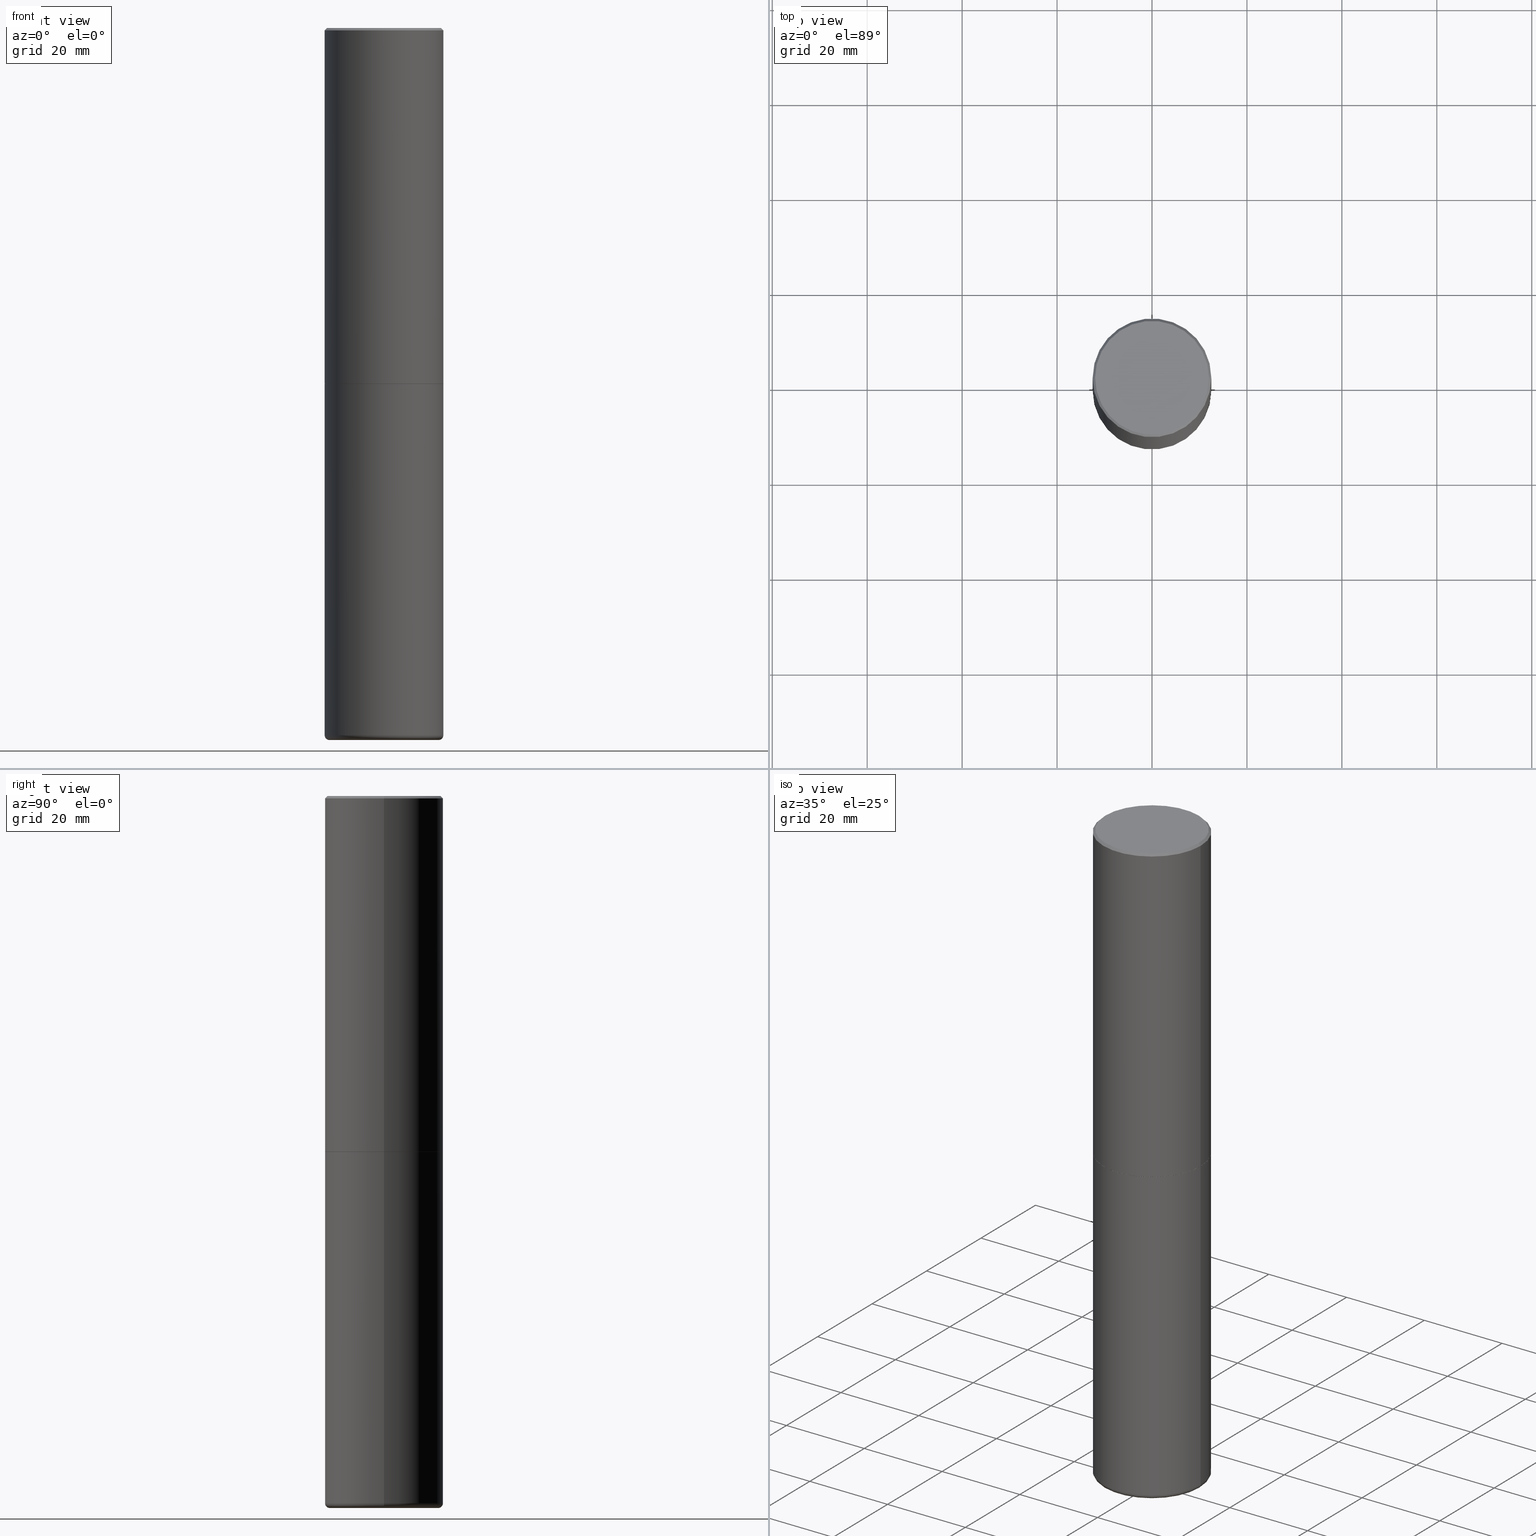
[diagram: canonical four-view strip — front | top / right | iso, engineering-drawing reading convention]
A machine part, canonical four-view strip (front | top / right | iso — engineering-drawing reading convention). The complete STEP part file that produces these views, byte-faithful:
ISO-10303-21;
HEADER;
FILE_DESCRIPTION (( 'STEP AP203' ),
    '1' );
FILE_NAME ('74575.STEP',
    '2024-03-06T15:31:44',
    ( '' ),
    ( '' ),
    'SwSTEP 2.0',
    'SolidWorks 2023',
    '' );
FILE_SCHEMA (( 'CONFIG_CONTROL_DESIGN' ));
ENDSEC;

DATA;
#1 = ORIENTED_EDGE ( 'NONE', *, *, #411, .F. ) ;
#2 = AXIS2_PLACEMENT_3D ( 'NONE', #138, #291, #237 ) ;
#3 = CARTESIAN_POINT ( 'NONE',  ( 7.220735744022852519E-29, -1.030929694920215502E-14, -2.952700000000000102 ) ) ;
#4 = EDGE_CURVE ( 'NONE', #44, #311, #40, .T. ) ;
#5 = AXIS2_PLACEMENT_3D ( 'NONE', #223, #346, #62 ) ;
#6 = EDGE_LOOP ( 'NONE', ( #80, #147, #334, #11 ) ) ;
#7 = PERSON_AND_ORGANIZATION ( #189, #377 ) ;
#8 = VERTEX_POINT ( 'NONE', #305 ) ;
#9 = CLOSED_SHELL ( 'NONE', ( #260, #340, #95, #109, #79, #98 ) ) ;
#10 = PERSON_AND_ORGANIZATION_ROLE ( 'classification_officer' ) ;
#11 = ORIENTED_EDGE ( 'NONE', *, *, #365, .F. ) ;
#12 = DIRECTION ( 'NONE',  ( -2.445468806185136597E-29, 3.491481338843145583E-15, 1.000000000000000000 ) ) ;
#13 = APPLICATION_CONTEXT ( 'configuration controlled 3d designs of mechanical parts and assemblies' ) ;
#14 = SECURITY_CLASSIFICATION ( '', '', #298 ) ;
#15 = PERSON_AND_ORGANIZATION ( #189, #377 ) ;
#16 = EDGE_LOOP ( 'NONE', ( #23, #196 ) ) ;
#17 = ORIENTED_EDGE ( 'NONE', *, *, #120, .T. ) ;
#18 = ADVANCED_FACE ( 'NONE', ( #19 ), #145, .T. ) ;
#19 = FACE_OUTER_BOUND ( 'NONE', #172, .T. ) ;
#20 = FACE_OUTER_BOUND ( 'NONE', #230, .T. ) ;
#21 = CIRCLE ( 'NONE', #410, 0.4921499999999999764 ) ;
#22 = LINE ( 'NONE', #90, #212 ) ;
#23 = ORIENTED_EDGE ( 'NONE', *, *, #113, .F. ) ;
#24 = LINE ( 'NONE', #148, #102 ) ;
#25 = EDGE_CURVE ( 'NONE', #152, #278, #414, .T. ) ;
#26 = FACE_OUTER_BOUND ( 'NONE', #6, .T. ) ;
#27 = EDGE_CURVE ( 'NONE', #8, #30, #231, .T. ) ;
#28 = VERTEX_POINT ( 'NONE', #198 ) ;
#29 = CARTESIAN_POINT ( 'NONE',  ( 4.488705641877112035E-29, -3.487222041955580978E-14, -5.905500000000000860 ) ) ;
#30 = VERTEX_POINT ( 'NONE', #108 ) ;
#31 = CARTESIAN_POINT ( 'NONE',  ( -0.4921500000000000874, -1.698444260774444222E-14, -5.866100000000000314 ) ) ;
#32 = DIRECTION ( 'NONE',  ( -2.445468806185136877E-29, 3.491481338843145188E-15, 1.000000000000000000 ) ) ;
#33 = APPLICATION_CONTEXT ( 'configuration controlled 3d designs of mechanical parts and assemblies' ) ;
#34 = DIRECTION ( 'NONE',  ( 1.000000000000000000, -6.982962677686265922E-15, 4.876176775795935793E-29 ) ) ;
#35 = ADVANCED_FACE ( 'NONE', ( #274 ), #362, .F. ) ;
#36 = LINE ( 'NONE', #282, #126 ) ;
#37 = ORIENTED_EDGE ( 'NONE', *, *, #181, .T. ) ;
#38 = CIRCLE ( 'NONE', #141, 0.4721500000000000696 ) ;
#39 = ORIENTED_EDGE ( 'NONE', *, *, #301, .T. ) ;
#40 = LINE ( 'NONE', #268, #156 ) ;
#41 = LOCAL_TIME ( 10, 31, 44.00000000000000000, #110 ) ;
#42 = PERSON_AND_ORGANIZATION_ROLE ( 'creator' ) ;
#43 = VERTEX_POINT ( 'NONE', #358 ) ;
#44 = VERTEX_POINT ( 'NONE', #371 ) ;
#45 = VECTOR ( 'NONE', #339, 39.37007874015748143 ) ;
#46 = DATE_TIME_ROLE ( 'creation_date' ) ;
#47 = TOROIDAL_SURFACE ( 'NONE', #372, 0.4527499999999999858, 0.03940000000000033753 ) ;
#48 = FACE_OUTER_BOUND ( 'NONE', #74, .T. ) ;
#49 = ORIENTED_EDGE ( 'NONE', *, *, #304, .F. ) ;
#50 = CC_DESIGN_PERSON_AND_ORGANIZATION_ASSIGNMENT ( #199, #168, ( #235 ) ) ;
#51 = EDGE_LOOP ( 'NONE', ( #353, #193, #356, #66 ) ) ;
#52 = DIRECTION ( 'NONE',  ( -1.000000000000000000, 6.982962677686265922E-15, -4.876176775795935793E-29 ) ) ;
#53 = AXIS2_PLACEMENT_3D ( 'NONE', #29, #412, #52 ) ;
#54 = FACE_OUTER_BOUND ( 'NONE', #16, .T. ) ;
#55 = CIRCLE ( 'NONE', #241, 0.03940000000000033753 ) ;
#56 = CC_DESIGN_APPROVAL ( #344, ( #235 ) ) ;
#57 = CARTESIAN_POINT ( 'NONE',  ( 1.444171603492632494E-28, -2.061894304653819828E-14, -5.905500000000000860 ) ) ;
#58 = LINE ( 'NONE', #84, #45 ) ;
#59 = CIRCLE ( 'NONE', #284, 0.4527499999999999858 ) ;
#60 = CARTESIAN_POINT ( 'NONE',  ( -0.4911499999999999755, -6.819466302516422338E-15, -2.952700000000000102 ) ) ;
#61 = CARTESIAN_POINT ( 'NONE',  ( 1.434536456396262923E-28, -2.048137868178777591E-14, -5.866100000000000314 ) ) ;
#62 = DIRECTION ( 'NONE',  ( 1.000000000000000000, -6.982962677686265922E-15, 0.000000000000000000 ) ) ;
#63 = CLOSED_SHELL ( 'NONE', ( #18, #224, #256, #136, #250, #192, #35, #157 ) ) ;
#64 = APPROVAL ( #354, 'UNSPECIFIED' ) ;
#65 = CARTESIAN_POINT ( 'NONE',  ( 0.000000000000000000, 0.000000000000000000, 0.000000000000000000 ) ) ;
#66 = ORIENTED_EDGE ( 'NONE', *, *, #301, .F. ) ;
#67 = DIRECTION ( 'NONE',  ( -2.445468806185136597E-29, 3.491481338843145583E-15, 1.000000000000000000 ) ) ;
#68 = APPROVAL_STATUS ( 'not_yet_approved' ) ;
#69 = VERTEX_POINT ( 'NONE', #367 ) ;
#70 = DATE_AND_TIME ( #357, #254 ) ;
#71 = ORIENTED_EDGE ( 'NONE', *, *, #380, .F. ) ;
#72 = EDGE_LOOP ( 'NONE', ( #299, #400, #39, #246 ) ) ;
#73 = CALENDAR_DATE ( 2024, 6, 3 ) ;
#74 = EDGE_LOOP ( 'NONE', ( #49, #139, #293, #303 ) ) ;
#75 = CALENDAR_DATE ( 2024, 6, 3 ) ;
#76 = ORIENTED_EDGE ( 'NONE', *, *, #370, .T. ) ;
#77 = PERSON_AND_ORGANIZATION ( #189, #377 ) ;
#78 = AXIS2_PLACEMENT_3D ( 'NONE', #161, #253, #382 ) ;
#79 = ADVANCED_FACE ( 'NONE', ( #48 ), #162, .T. ) ;
#80 = ORIENTED_EDGE ( 'NONE', *, *, #181, .F. ) ;
#81 = UNCERTAINTY_MEASURE_WITH_UNIT (LENGTH_MEASURE( 1.000000000000000082E-05 ), #165, 'distance_accuracy_value', 'NONE');
#82 = APPROVAL_PERSON_ORGANIZATION ( #329, #344, #202 ) ;
#83 = ORIENTED_EDGE ( 'NONE', *, *, #317, .F. ) ;
#84 = CARTESIAN_POINT ( 'NONE',  ( -0.4921499999999999764, 3.496936074043332897E-15, -2.420853904668951509E-29 ) ) ;
#85 = DIRECTION ( 'NONE',  ( -0.7071067811867406405, 7.493145998871051513E-15, 0.7071067811863543939 ) ) ;
#86 = EDGE_LOOP ( 'NONE', ( #83, #300 ) ) ;
#87 = DIRECTION ( 'NONE',  ( -1.000000000000000000, 6.982962677686265922E-15, -4.876176775795935793E-29 ) ) ;
#88 = DIRECTION ( 'NONE',  ( 1.000000000000000000, -6.982962677686265922E-15, 4.876176775795935793E-29 ) ) ;
#89 = CC_DESIGN_DATE_AND_TIME_ASSIGNMENT ( #132, #265, ( #14 ) ) ;
#90 = CARTESIAN_POINT ( 'NONE',  ( -0.4921500000000000874, 3.496936074043333686E-15, -2.420853904668952350E-29 ) ) ;
#91 = CARTESIAN_POINT ( 'NONE',  ( 1.434536456396262923E-28, -2.048137868178777591E-14, -5.866100000000000314 ) ) ;
#92 = DIRECTION ( 'NONE',  ( 1.000000000000000000, -6.982962677686268288E-15, 0.000000000000000000 ) ) ;
#93 = FACE_OUTER_BOUND ( 'NONE', #375, .T. ) ;
#94 = AXIS2_PLACEMENT_3D ( 'NONE', #289, #259, #384 ) ;
#95 = ADVANCED_FACE ( 'NONE', ( #100 ), #378, .F. ) ;
#96 = ORIENTED_EDGE ( 'NONE', *, *, #226, .T. ) ;
#97 = DIRECTION ( 'NONE',  ( -2.445468806185136597E-29, 3.491481338843145583E-15, 1.000000000000000000 ) ) ;
#98 = ADVANCED_FACE ( 'NONE', ( #54 ), #275, .T. ) ;
#99 = LINE ( 'NONE', #319, #104 ) ;
#100 = FACE_OUTER_BOUND ( 'NONE', #131, .T. ) ;
#101 = APPLICATION_PROTOCOL_DEFINITION ( 'international standard', 'config_control_design', 1994, #33 ) ;
#102 = VECTOR ( 'NONE', #403, 39.37007874015748143 ) ;
#103 = DIRECTION ( 'NONE',  ( 1.000000000000000000, -6.982962677686269077E-15, 4.883557194083114022E-29 ) ) ;
#104 = VECTOR ( 'NONE', #32, 39.37007874015748143 ) ;
#105 = APPROVAL_ROLE ( '' ) ;
#106 = DIRECTION ( 'NONE',  ( -2.445468806185136597E-29, 3.491481338843145583E-15, 1.000000000000000000 ) ) ;
#107 = PERSON_AND_ORGANIZATION ( #189, #377 ) ;
#108 = CARTESIAN_POINT ( 'NONE',  ( -0.4921500000000003094, -1.690881473276751010E-15, -2.951700000000000212 ) ) ;
#109 = ADVANCED_FACE ( 'NONE', ( #251 ), #180, .T. ) ;
#110 = COORDINATED_UNIVERSAL_TIME_OFFSET ( 5, 0, .BEHIND. ) ;
#111 = AXIS2_PLACEMENT_3D ( 'NONE', #240, #12, #206 ) ;
#112 = ORIENTED_EDGE ( 'NONE', *, *, #4, .F. ) ;
#113 = EDGE_CURVE ( 'NONE', #187, #43, #59, .T. ) ;
#114 = AXIS2_PLACEMENT_3D ( 'NONE', #3, #252, #92 ) ;
#115 = CARTESIAN_POINT ( 'NONE',  ( 0.4527499999999999858, -2.378047939886065405E-14, -5.905500000000000860 ) ) ;
#116 = CARTESIAN_POINT ( 'NONE',  ( 3.297005828269570364E-15, 0.4721500000000000696, -1.731738907691749419E-15 ) ) ;
#117 = CIRCLE ( 'NONE', #396, 0.4921499999999999764 ) ;
#118 = CARTESIAN_POINT ( 'NONE',  ( 7.220735744022852519E-29, -1.030929694920215502E-14, -2.952700000000000102 ) ) ;
#119 = FACE_OUTER_BOUND ( 'NONE', #355, .T. ) ;
#120 = EDGE_CURVE ( 'NONE', #8, #306, #24, .T. ) ;
#121 = PRODUCT_RELATED_PRODUCT_CATEGORY ( 'detail', '', ( #204 ) ) ;
#122 = DIRECTION ( 'NONE',  ( -2.445468806185136877E-29, 3.491481338843145188E-15, 1.000000000000000000 ) ) ;
#123 = CC_DESIGN_PERSON_AND_ORGANIZATION_ASSIGNMENT ( #15, #401, ( #235 ) ) ;
#124 = DIRECTION ( 'NONE',  ( -2.445468806185136597E-29, 3.491481338843145583E-15, 1.000000000000000000 ) ) ;
#125 = FACE_OUTER_BOUND ( 'NONE', #51, .T. ) ;
#126 = VECTOR ( 'NONE', #185, 39.37007874015748143 ) ;
#127 = DIRECTION ( 'NONE',  ( 1.000000000000000000, -6.982962677686266711E-15, 4.875605319575677862E-29 ) ) ;
#128 = LENGTH_MEASURE_WITH_UNIT ( LENGTH_MEASURE( 0.02539999999999999897 ), #322 );
#129 = DIRECTION ( 'NONE',  ( 1.000000000000000000, -6.982962677686269077E-15, 4.883557194083114022E-29 ) ) ;
#130 = CARTESIAN_POINT ( 'NONE',  ( 7.220735744022852519E-29, -1.030929694920215502E-14, -2.952700000000000102 ) ) ;
#131 = EDGE_LOOP ( 'NONE', ( #96, #174 ) ) ;
#132 = DATE_AND_TIME ( #398, #287 ) ;
#133 = CIRCLE ( 'NONE', #273, 0.4527499999999999858 ) ;
#134 = ORIENTED_EDGE ( 'NONE', *, *, #352, .F. ) ;
#135 = ORIENTED_EDGE ( 'NONE', *, *, #27, .T. ) ;
#136 = ADVANCED_FACE ( 'NONE', ( #248 ), #290, .T. ) ;
#137 = VERTEX_POINT ( 'NONE', #175 ) ;
#138 = CARTESIAN_POINT ( 'NONE',  ( 0.000000000000000000, 0.000000000000000000, 0.000000000000000000 ) ) ;
#139 = ORIENTED_EDGE ( 'NONE', *, *, #151, .T. ) ;
#140 = DIRECTION ( 'NONE',  ( 1.000000000000000000, -6.982962677686268288E-15, 0.000000000000000000 ) ) ;
#141 = AXIS2_PLACEMENT_3D ( 'NONE', #351, #67, #127 ) ;
#142 = CARTESIAN_POINT ( 'NONE',  ( -0.4911499999999999755, -6.814167848168199148E-15, -2.952700000000000102 ) ) ;
#143 = CARTESIAN_POINT ( 'NONE',  ( 7.220735744022852519E-29, -1.030929694920215502E-14, -2.952700000000000102 ) ) ;
#144 = DIRECTION ( 'NONE',  ( -2.445468806185136597E-29, 3.491481338843145583E-15, 1.000000000000000000 ) ) ;
#145 = CONICAL_SURFACE ( 'NONE', #111, 0.4911499999999999755, 0.7853981633977213939 ) ;
#146 = EDGE_CURVE ( 'NONE', #30, #311, #22, .T. ) ;
#147 = ORIENTED_EDGE ( 'NONE', *, *, #25, .T. ) ;
#148 = CARTESIAN_POINT ( 'NONE',  ( 0.4921500000000000874, -3.436665081823296565E-15, 2.399810400207970163E-29 ) ) ;
#149 = CIRCLE ( 'NONE', #359, 0.4921499999999999764 ) ;
#150 = MANIFOLD_SOLID_BREP ( 'Body-Move/Copy2[1]', #9 ) ;
#151 = EDGE_CURVE ( 'NONE', #43, #187, #133, .T. ) ;
#152 = VERTEX_POINT ( 'NONE', #142 ) ;
#153 = DIRECTION ( 'NONE',  ( 2.438088387897960049E-29, -3.491481338843145188E-15, -1.000000000000000000 ) ) ;
#154 = EDGE_CURVE ( 'NONE', #311, #306, #296, .T. ) ;
#155 = CARTESIAN_POINT ( 'NONE',  ( -0.4921499999999999764, 3.366835455046432478E-15, -0.02000000000000010797 ) ) ;
#156 = VECTOR ( 'NONE', #402, 39.37007874015748143 ) ;
#157 = ADVANCED_FACE ( 'NONE', ( #245 ), #379, .F. ) ;
#158 = DIRECTION ( 'NONE',  ( 0.7071067811865472397, -7.319954787623254468E-15, -0.7071067811865477948 ) ) ;
#159 = APPROVAL_PERSON_ORGANIZATION ( #107, #215, #105 ) ;
#160 = CARTESIAN_POINT ( 'NONE',  ( 4.890937612370299433E-31, -6.982962677686328587E-17, -0.02000000000000010797 ) ) ;
#161 = CARTESIAN_POINT ( 'NONE',  ( -0.4527499999999999858, -1.726439644563392242E-14, -5.866100000000000314 ) ) ;
#162 = TOROIDAL_SURFACE ( 'NONE', #368, 0.4527499999999999858, 0.03940000000000033753 ) ;
#163 = SHAPE_DEFINITION_REPRESENTATION ( #360, #363 ) ;
#164 = EDGE_CURVE ( 'NONE', #324, #69, #58, .T. ) ;
#165 =( CONVERSION_BASED_UNIT ( 'INCH', #128 ) LENGTH_UNIT ( ) NAMED_UNIT ( #178 ) );
#166 = DIRECTION ( 'NONE',  ( 1.000000000000000000, -6.982962677686265922E-15, 4.876176775795935793E-29 ) ) ;
#167 = ORIENTED_EDGE ( 'NONE', *, *, #258, .T. ) ;
#168 = PERSON_AND_ORGANIZATION_ROLE ( 'design_supplier' ) ;
#169 = AXIS2_PLACEMENT_3D ( 'NONE', #341, #307, #310 ) ;
#170 = ORIENTED_EDGE ( 'NONE', *, *, #120, .F. ) ;
#171 = AXIS2_PLACEMENT_3D ( 'NONE', #318, #124, #325 ) ;
#172 = EDGE_LOOP ( 'NONE', ( #383, #37, #271, #1 ) ) ;
#173 = CIRCLE ( 'NONE', #373, 0.4721500000000000696 ) ;
#174 = ORIENTED_EDGE ( 'NONE', *, *, #288, .T. ) ;
#175 = CARTESIAN_POINT ( 'NONE',  ( 0.4921499999999999764, -1.374596203102545079E-14, -2.952700000000000102 ) ) ;
#176 = AXIS2_PLACEMENT_3D ( 'NONE', #118, #409, #213 ) ;
#177 = DIRECTION ( 'NONE',  ( -2.445468806185136597E-29, 3.491481338843145583E-15, 1.000000000000000000 ) ) ;
#178 = DIMENSIONAL_EXPONENTS ( 1.000000000000000000, 0.000000000000000000, 0.000000000000000000, 0.000000000000000000, 0.000000000000000000, 0.000000000000000000, 0.000000000000000000 ) ;
#179 = CARTESIAN_POINT ( 'NONE',  ( 4.890937612370299433E-31, -6.982962677686328587E-17, -0.02000000000000010797 ) ) ;
#180 = CYLINDRICAL_SURFACE ( 'NONE', #312, 0.4921499999999999764 ) ;
#181 = EDGE_CURVE ( 'NONE', #152, #30, #376, .T. ) ;
#182 = AXIS2_PLACEMENT_3D ( 'NONE', #249, #153, #87 ) ;
#183 = DIRECTION ( 'NONE',  ( -2.445468806185136597E-29, 3.491481338843145583E-15, 1.000000000000000000 ) ) ;
#184 = CIRCLE ( 'NONE', #5, 0.4921500000000003094 ) ;
#185 = DIRECTION ( 'NONE',  ( 0.7071067811867406405, -2.468850131084279700E-15, 0.7071067811863543939 ) ) ;
#186 = LINE ( 'NONE', #227, #217 ) ;
#187 = VERTEX_POINT ( 'NONE', #115 ) ;
#188 = CARTESIAN_POINT ( 'NONE',  ( 0.4911499999999999755, -1.373897906834776478E-14, -2.952700000000000102 ) ) ;
#189 = PERSON ( 'UNSPECIFIED', 'UNSPECIFIED', 'UNSPECIFIED', ('UNSPECIFIED'), ('UNSPECIFIED'), ('UNSPECIFIED') ) ;
#190 =( GEOMETRIC_REPRESENTATION_CONTEXT ( 3 ) GLOBAL_UNCERTAINTY_ASSIGNED_CONTEXT ( ( #81 ) ) GLOBAL_UNIT_ASSIGNED_CONTEXT ( ( #165, #263, #270 ) ) REPRESENTATION_CONTEXT ( 'NONE', 'WORKASPACE' ) );
#191 = DIRECTION ( 'NONE',  ( -2.445468806185136597E-29, 3.491481338843145583E-15, 1.000000000000000000 ) ) ;
#192 = ADVANCED_FACE ( 'NONE', ( #26 ), #216, .T. ) ;
#193 = ORIENTED_EDGE ( 'NONE', *, *, #164, .T. ) ;
#194 = DIRECTION ( 'NONE',  ( 1.000000000000000000, -6.982962677686265922E-15, 0.000000000000000000 ) ) ;
#195 = PRODUCT_DEFINITION ( 'UNKNOWN', '', #235, #321 ) ;
#196 = ORIENTED_EDGE ( 'NONE', *, *, #151, .F. ) ;
#197 = COORDINATED_UNIVERSAL_TIME_OFFSET ( 5, 0, .BEHIND. ) ;
#198 = CARTESIAN_POINT ( 'NONE',  ( 0.4921500000000000874, -2.391804376361107326E-14, -5.866100000000000314 ) ) ;
#199 = PERSON_AND_ORGANIZATION ( #189, #377 ) ;
#200 = APPROVAL_PERSON_ORGANIZATION ( #261, #64, #267 ) ;
#201 = ORIENTED_EDGE ( 'NONE', *, *, #304, .T. ) ;
#202 = APPROVAL_ROLE ( '' ) ;
#203 = ORIENTED_EDGE ( 'NONE', *, *, #154, .T. ) ;
#204 = PRODUCT ( '74575', '74575', '', ( #392 ) ) ;
#205 = APPROVAL_DATE_TIME ( #391, #64 ) ;
#206 = DIRECTION ( 'NONE',  ( 1.000000000000000000, -6.982962677686268288E-15, 0.000000000000000000 ) ) ;
#207 = AXIS2_PLACEMENT_3D ( 'NONE', #255, #257, #413 ) ;
#208 = APPROVAL_DATE_TIME ( #369, #215 ) ;
#209 = CIRCLE ( 'NONE', #262, 0.4921499999999999764 ) ;
#210 = EDGE_LOOP ( 'NONE', ( #386, #327, #417, #203 ) ) ;
#211 = CARTESIAN_POINT ( 'NONE',  ( 4.071020515907357082E-45, -5.812338364483744108E-31, -1.664719871139160491E-16 ) ) ;
#212 = VECTOR ( 'NONE', #122, 39.37007874015748143 ) ;
#213 = DIRECTION ( 'NONE',  ( 1.000000000000000000, -6.982962677686268288E-15, 0.000000000000000000 ) ) ;
#214 = VECTOR ( 'NONE', #85, 39.37007874015748143 ) ;
#215 = APPROVAL ( #394, 'UNSPECIFIED' ) ;
#216 = CONICAL_SURFACE ( 'NONE', #176, 0.4911499999999999755, 0.7853981633977213939 ) ;
#217 = VECTOR ( 'NONE', #158, 39.37007874015748143 ) ;
#218 = DIRECTION ( 'NONE',  ( -1.000000000000000000, 6.982962677686265922E-15, -4.876176775795935793E-29 ) ) ;
#219 = CC_DESIGN_PERSON_AND_ORGANIZATION_ASSIGNMENT ( #77, #228, ( #204 ) ) ;
#220 = DIRECTION ( 'NONE',  ( 1.000000000000000000, -6.982962677686265922E-15, 4.876176775795935793E-29 ) ) ;
#221 = DIRECTION ( 'NONE',  ( -2.445468806185136597E-29, 3.491481338843145583E-15, 1.000000000000000000 ) ) ;
#222 = DIRECTION ( 'NONE',  ( 1.000000000000000000, -6.982962677686268288E-15, 0.000000000000000000 ) ) ;
#223 = CARTESIAN_POINT ( 'NONE',  ( 7.218290275216666916E-29, -1.030580546786331359E-14, -2.951700000000000212 ) ) ;
#224 = ADVANCED_FACE ( 'NONE', ( #119 ), #381, .T. ) ;
#225 = DIRECTION ( 'NONE',  ( -2.445468806185136597E-29, 3.491481338843145583E-15, 1.000000000000000000 ) ) ;
#226 = EDGE_CURVE ( 'NONE', #137, #69, #209, .T. ) ;
#227 = CARTESIAN_POINT ( 'NONE',  ( 0.4921499999999999764, -3.446223716380122349E-15, -0.02000000000000010797 ) ) ;
#228 = PERSON_AND_ORGANIZATION_ROLE ( 'design_owner' ) ;
#229 = ORIENTED_EDGE ( 'NONE', *, *, #365, .T. ) ;
#230 = EDGE_LOOP ( 'NONE', ( #233, #229, #17, #313 ) ) ;
#231 = CIRCLE ( 'NONE', #349, 0.4921500000000003094 ) ;
#232 = COORDINATED_UNIVERSAL_TIME_OFFSET ( 5, 0, .BEHIND. ) ;
#233 = ORIENTED_EDGE ( 'NONE', *, *, #146, .F. ) ;
#234 = APPLICATION_PROTOCOL_DEFINITION ( 'international standard', 'config_control_design', 1994, #13 ) ;
#235 = PRODUCT_DEFINITION_FORMATION_WITH_SPECIFIED_SOURCE ( 'ANY', '', #204, .NOT_KNOWN. ) ;
#236 = DIRECTION ( 'NONE',  ( 1.000000000000000000, -6.982962677686265922E-15, 0.000000000000000000 ) ) ;
#237 = DIRECTION ( 'NONE',  ( 1.000000000000000000, 0.000000000000000000, 0.000000000000000000 ) ) ;
#238 = DIRECTION ( 'NONE',  ( -2.438088387897960049E-29, 3.491481338843145188E-15, 1.000000000000000000 ) ) ;
#239 = CALENDAR_DATE ( 2024, 6, 3 ) ;
#240 = CARTESIAN_POINT ( 'NONE',  ( 7.220735744022852519E-29, -1.030929694920215502E-14, -2.952700000000000102 ) ) ;
#241 = AXIS2_PLACEMENT_3D ( 'NONE', #350, #415, #222 ) ;
#242 = ORIENTED_EDGE ( 'NONE', *, *, #113, .T. ) ;
#243 = EDGE_CURVE ( 'NONE', #44, #335, #173, .T. ) ;
#244 = DIRECTION ( 'NONE',  ( -2.445468806185136597E-29, 3.491481338843145583E-15, 1.000000000000000000 ) ) ;
#245 = FACE_OUTER_BOUND ( 'NONE', #399, .T. ) ;
#246 = ORIENTED_EDGE ( 'NONE', *, *, #288, .F. ) ;
#247 = AXIS2_PLACEMENT_3D ( 'NONE', #328, #292, #140 ) ;
#248 = FACE_OUTER_BOUND ( 'NONE', #210, .T. ) ;
#249 = CARTESIAN_POINT ( 'NONE',  ( 7.220735744022852519E-29, -1.030929694920215502E-14, -2.952700000000000102 ) ) ;
#250 = ADVANCED_FACE ( 'NONE', ( #20 ), #276, .T. ) ;
#251 = FACE_OUTER_BOUND ( 'NONE', #72, .T. ) ;
#252 = DIRECTION ( 'NONE',  ( -2.445468806185136597E-29, 3.491481338843145583E-15, 1.000000000000000000 ) ) ;
#253 = DIRECTION ( 'NONE',  ( 7.105427357601001859E-15, 1.000000000000000000, -3.491481338843145583E-15 ) ) ;
#254 = LOCAL_TIME ( 10, 31, 44.00000000000000000, #197 ) ;
#255 = CARTESIAN_POINT ( 'NONE',  ( 1.434536456396262923E-28, -2.048137868178777591E-14, -5.866100000000000314 ) ) ;
#256 = ADVANCED_FACE ( 'NONE', ( #93 ), #347, .T. ) ;
#257 = DIRECTION ( 'NONE',  ( -2.445468806185136597E-29, 3.491481338843145583E-15, 1.000000000000000000 ) ) ;
#258 = EDGE_CURVE ( 'NONE', #306, #311, #117, .T. ) ;
#259 = DIRECTION ( 'NONE',  ( 2.445468806185136597E-29, -3.491481338843145583E-15, -1.000000000000000000 ) ) ;
#260 = ADVANCED_FACE ( 'NONE', ( #125 ), #387, .T. ) ;
#261 = PERSON_AND_ORGANIZATION ( #189, #377 ) ;
#262 = AXIS2_PLACEMENT_3D ( 'NONE', #143, #244, #374 ) ;
#263 =( NAMED_UNIT ( * ) PLANE_ANGLE_UNIT ( ) SI_UNIT ( $, .RADIAN. ) );
#264 = CARTESIAN_POINT ( 'NONE',  ( 1.434536456396262923E-28, -2.048137868178777591E-14, -5.866100000000000314 ) ) ;
#265 = DATE_TIME_ROLE ( 'classification_date' ) ;
#266 = ORIENTED_EDGE ( 'NONE', *, *, #380, .T. ) ;
#267 = APPROVAL_ROLE ( '' ) ;
#268 = CARTESIAN_POINT ( 'NONE',  ( -0.4921499999999999764, 3.366835455046432478E-15, -0.02000000000000010797 ) ) ;
#269 = EDGE_CURVE ( 'NONE', #324, #28, #149, .T. ) ;
#270 =( NAMED_UNIT ( * ) SI_UNIT ( $, .STERADIAN. ) SOLID_ANGLE_UNIT ( ) );
#271 = ORIENTED_EDGE ( 'NONE', *, *, #27, .F. ) ;
#272 = CC_DESIGN_DATE_AND_TIME_ASSIGNMENT ( #302, #46, ( #195 ) ) ;
#273 = AXIS2_PLACEMENT_3D ( 'NONE', #406, #144, #343 ) ;
#274 = FACE_OUTER_BOUND ( 'NONE', #86, .T. ) ;
#275 = PLANE ( 'NONE',  #53 ) ;
#276 = CYLINDRICAL_SURFACE ( 'NONE', #364, 0.4921500000000000874 ) ;
#277 = CC_DESIGN_PERSON_AND_ORGANIZATION_ASSIGNMENT ( #7, #10, ( #14 ) ) ;
#278 = VERTEX_POINT ( 'NONE', #188 ) ;
#279 = CARTESIAN_POINT ( 'NONE',  ( 0.000000000000000000, 0.000000000000000000, 0.000000000000000000 ) ) ;
#280 = CARTESIAN_POINT ( 'NONE',  ( 0.000000000000000000, 0.000000000000000000, 0.000000000000000000 ) ) ;
#281 = LOCAL_TIME ( 10, 31, 44.00000000000000000, #232 ) ;
#282 = CARTESIAN_POINT ( 'NONE',  ( 0.4911499999999999755, -1.373897906834776478E-14, -2.952700000000000102 ) ) ;
#283 = FACE_OUTER_BOUND ( 'NONE', #295, .T. ) ;
#284 = AXIS2_PLACEMENT_3D ( 'NONE', #57, #221, #314 ) ;
#285 = ORIENTED_EDGE ( 'NONE', *, *, #258, .F. ) ;
#286 = DIRECTION ( 'NONE',  ( -2.445468806185136597E-29, 3.491481338843145583E-15, 1.000000000000000000 ) ) ;
#287 = LOCAL_TIME ( 10, 31, 44.00000000000000000, #333 ) ;
#288 = EDGE_CURVE ( 'NONE', #69, #137, #21, .T. ) ;
#289 = CARTESIAN_POINT ( 'NONE',  ( 4.890937612370299433E-31, -6.982962677686328587E-17, -0.02000000000000010797 ) ) ;
#290 = CONICAL_SURFACE ( 'NONE', #320, 0.4921499999999999764, 0.7853981633974479459 ) ;
#291 = DIRECTION ( 'NONE',  ( 0.000000000000000000, 0.000000000000000000, 1.000000000000000000 ) ) ;
#292 = DIRECTION ( 'NONE',  ( -2.445468806185136597E-29, 3.491481338843145583E-15, 1.000000000000000000 ) ) ;
#293 = ORIENTED_EDGE ( 'NONE', *, *, #352, .T. ) ;
#294 = PERSON_AND_ORGANIZATION ( #189, #377 ) ;
#295 = EDGE_LOOP ( 'NONE', ( #242, #201, #331, #134 ) ) ;
#296 = CIRCLE ( 'NONE', #169, 0.4921499999999999764 ) ;
#297 = MANIFOLD_SOLID_BREP ( 'Body-Move/Copy2[2]', #63 ) ;
#298 = SECURITY_CLASSIFICATION_LEVEL ( 'unclassified' ) ;
#299 = ORIENTED_EDGE ( 'NONE', *, *, #164, .F. ) ;
#300 = ORIENTED_EDGE ( 'NONE', *, *, #25, .F. ) ;
#301 = EDGE_CURVE ( 'NONE', #28, #137, #99, .T. ) ;
#302 = DATE_AND_TIME ( #73, #281 ) ;
#303 = ORIENTED_EDGE ( 'NONE', *, *, #269, .F. ) ;
#304 = EDGE_CURVE ( 'NONE', #43, #324, #332, .T. ) ;
#305 = CARTESIAN_POINT ( 'NONE',  ( 0.4921500000000003094, -1.374247054968661252E-14, -2.951700000000000212 ) ) ;
#306 = VERTEX_POINT ( 'NONE', #385 ) ;
#307 = DIRECTION ( 'NONE',  ( -2.445468806185136597E-29, 3.491481338843145583E-15, 1.000000000000000000 ) ) ;
#308 = CIRCLE ( 'NONE', #207, 0.4921499999999999764 ) ;
#309 = DIRECTION ( 'NONE',  ( 2.438088387897960049E-29, -3.491481338843145188E-15, -1.000000000000000000 ) ) ;
#310 = DIRECTION ( 'NONE',  ( 1.000000000000000000, -6.982962677686265922E-15, 0.000000000000000000 ) ) ;
#311 = VERTEX_POINT ( 'NONE', #155 ) ;
#312 = AXIS2_PLACEMENT_3D ( 'NONE', #279, #177, #220 ) ;
#313 = ORIENTED_EDGE ( 'NONE', *, *, #154, .F. ) ;
#314 = DIRECTION ( 'NONE',  ( 1.000000000000000000, -6.982962677686269077E-15, 0.000000000000000000 ) ) ;
#315 = DIRECTION ( 'NONE',  ( 2.445468806185136597E-29, -3.491481338843145583E-15, -1.000000000000000000 ) ) ;
#316 = LOCAL_TIME ( 10, 31, 44.00000000000000000, #366 ) ;
#317 = EDGE_CURVE ( 'NONE', #278, #152, #338, .T. ) ;
#318 = CARTESIAN_POINT ( 'NONE',  ( 0.000000000000000000, 0.000000000000000000, 0.000000000000000000 ) ) ;
#319 = CARTESIAN_POINT ( 'NONE',  ( 0.4921499999999999764, -3.436665081823295777E-15, 2.399810400207969603E-29 ) ) ;
#320 = AXIS2_PLACEMENT_3D ( 'NONE', #179, #315, #405 ) ;
#321 = DESIGN_CONTEXT ( 'detailed design', #33, 'design' ) ;
#322 =( LENGTH_UNIT ( ) NAMED_UNIT ( * ) SI_UNIT ( $, .METRE. ) );
#323 = DIRECTION ( 'NONE',  ( 1.000000000000000000, -6.982962677686265922E-15, 0.000000000000000000 ) ) ;
#324 = VERTEX_POINT ( 'NONE', #31 ) ;
#325 = DIRECTION ( 'NONE',  ( 1.000000000000000000, -6.982962677686265922E-15, 4.876176775795935793E-29 ) ) ;
#326 = CARTESIAN_POINT ( 'NONE',  ( 7.218290275216666916E-29, -1.030580546786331359E-14, -2.951700000000000212 ) ) ;
#327 = ORIENTED_EDGE ( 'NONE', *, *, #243, .F. ) ;
#328 = CARTESIAN_POINT ( 'NONE',  ( 7.220735744022852519E-29, -1.030929694920215502E-14, -2.952700000000000102 ) ) ;
#329 = PERSON_AND_ORGANIZATION ( #189, #377 ) ;
#330 = CC_DESIGN_PERSON_AND_ORGANIZATION_ASSIGNMENT ( #294, #42, ( #195 ) ) ;
#331 = ORIENTED_EDGE ( 'NONE', *, *, #390, .F. ) ;
#332 = CIRCLE ( 'NONE', #78, 0.03940000000000033753 ) ;
#333 = COORDINATED_UNIVERSAL_TIME_OFFSET ( 5, 0, .BEHIND. ) ;
#334 = ORIENTED_EDGE ( 'NONE', *, *, #411, .T. ) ;
#335 = VERTEX_POINT ( 'NONE', #416 ) ;
#336 = DIRECTION ( 'NONE',  ( 1.000000000000000000, -6.982962677686266711E-15, 4.875605319575677862E-29 ) ) ;
#337 = DIRECTION ( 'NONE',  ( -2.445468806185136597E-29, 3.491481338843145583E-15, 1.000000000000000000 ) ) ;
#338 = CIRCLE ( 'NONE', #114, 0.4911499999999999755 ) ;
#339 = DIRECTION ( 'NONE',  ( -2.445468806185136877E-29, 3.491481338843145188E-15, 1.000000000000000000 ) ) ;
#340 = ADVANCED_FACE ( 'NONE', ( #283 ), #47, .T. ) ;
#341 = CARTESIAN_POINT ( 'NONE',  ( 4.890937612370299433E-31, -6.982962677686328587E-17, -0.02000000000000010797 ) ) ;
#342 = AXIS2_PLACEMENT_3D ( 'NONE', #130, #238, #166 ) ;
#343 = DIRECTION ( 'NONE',  ( 1.000000000000000000, -6.982962677686269077E-15, 0.000000000000000000 ) ) ;
#344 = APPROVAL ( #68, 'UNSPECIFIED' ) ;
#345 = DIRECTION ( 'NONE',  ( 1.000000000000000000, -6.982962677686265922E-15, 0.000000000000000000 ) ) ;
#346 = DIRECTION ( 'NONE',  ( -2.445468806185136597E-29, 3.491481338843145583E-15, 1.000000000000000000 ) ) ;
#347 = CONICAL_SURFACE ( 'NONE', #94, 0.4921499999999999764, 0.7853981633974479459 ) ;
#348 = DIRECTION ( 'NONE',  ( -2.445468806185136597E-29, 3.491481338843145583E-15, 1.000000000000000000 ) ) ;
#349 = AXIS2_PLACEMENT_3D ( 'NONE', #326, #106, #236 ) ;
#350 = CARTESIAN_POINT ( 'NONE',  ( 0.4527499999999999858, -2.364291503411023483E-14, -5.866100000000000314 ) ) ;
#351 = CARTESIAN_POINT ( 'NONE',  ( 4.071020515907357082E-45, -5.812338364483744108E-31, -1.664719871139160491E-16 ) ) ;
#352 = EDGE_CURVE ( 'NONE', #187, #28, #55, .T. ) ;
#353 = ORIENTED_EDGE ( 'NONE', *, *, #390, .T. ) ;
#354 = APPROVAL_STATUS ( 'not_yet_approved' ) ;
#355 = EDGE_LOOP ( 'NONE', ( #135, #408, #285, #170 ) ) ;
#356 = ORIENTED_EDGE ( 'NONE', *, *, #226, .F. ) ;
#357 = CALENDAR_DATE ( 2024, 6, 3 ) ;
#358 = CARTESIAN_POINT ( 'NONE',  ( -0.4527499999999999858, -1.719320170906439193E-14, -5.905500000000000860 ) ) ;
#359 = AXIS2_PLACEMENT_3D ( 'NONE', #61, #348, #345 ) ;
#360 = PRODUCT_DEFINITION_SHAPE ( 'NONE', 'NONE',  #195 ) ;
#361 = APPROVAL_DATE_TIME ( #70, #344 ) ;
#362 = PLANE ( 'NONE',  #342 ) ;
#363 = ADVANCED_BREP_SHAPE_REPRESENTATION ( '74575', ( #150, #297, #2 ), #190 ) ;
#364 = AXIS2_PLACEMENT_3D ( 'NONE', #65, #97, #34 ) ;
#365 = EDGE_CURVE ( 'NONE', #30, #8, #184, .T. ) ;
#366 = COORDINATED_UNIVERSAL_TIME_OFFSET ( 5, 0, .BEHIND. ) ;
#367 = CARTESIAN_POINT ( 'NONE',  ( -0.4921499999999999764, -1.189840174145163414E-14, -2.952700000000000102 ) ) ;
#368 = AXIS2_PLACEMENT_3D ( 'NONE', #264, #393, #103 ) ;
#369 = DATE_AND_TIME ( #239, #41 ) ;
#370 = EDGE_CURVE ( 'NONE', #335, #306, #186, .T. ) ;
#371 = CARTESIAN_POINT ( 'NONE',  ( -0.4721500000000000696, 3.331920641658001618E-15, -1.664719871139392219E-16 ) ) ;
#372 = AXIS2_PLACEMENT_3D ( 'NONE', #91, #225, #129 ) ;
#373 = AXIS2_PLACEMENT_3D ( 'NONE', #211, #337, #336 ) ;
#374 = DIRECTION ( 'NONE',  ( 1.000000000000000000, -6.982962677686265922E-15, 0.000000000000000000 ) ) ;
#375 = EDGE_LOOP ( 'NONE', ( #71, #76, #167, #112 ) ) ;
#376 = LINE ( 'NONE', #60, #214 ) ;
#377 = ORGANIZATION ( 'UNSPECIFIED', 'UNSPECIFIED', '' ) ;
#378 = PLANE ( 'NONE',  #182 ) ;
#379 = PLANE ( 'NONE',  #407 ) ;
#380 = EDGE_CURVE ( 'NONE', #335, #44, #38, .T. ) ;
#381 = CYLINDRICAL_SURFACE ( 'NONE', #389, 0.4921500000000000874 ) ;
#382 = DIRECTION ( 'NONE',  ( -1.000000000000000000, 7.105427357601014480E-15, 0.000000000000000000 ) ) ;
#383 = ORIENTED_EDGE ( 'NONE', *, *, #317, .T. ) ;
#384 = DIRECTION ( 'NONE',  ( -1.000000000000000000, 6.982962677686265922E-15, 0.000000000000000000 ) ) ;
#385 = CARTESIAN_POINT ( 'NONE',  ( 0.4921499999999999764, -3.446223716380122349E-15, -0.02000000000000010797 ) ) ;
#386 = ORIENTED_EDGE ( 'NONE', *, *, #370, .F. ) ;
#387 = CYLINDRICAL_SURFACE ( 'NONE', #171, 0.4921499999999999764 ) ;
#388 = CARTESIAN_POINT ( 'NONE',  ( 7.220735744022852519E-29, -1.030929694920215502E-14, -2.952700000000000102 ) ) ;
#389 = AXIS2_PLACEMENT_3D ( 'NONE', #280, #183, #88 ) ;
#390 = EDGE_CURVE ( 'NONE', #28, #324, #308, .T. ) ;
#391 = DATE_AND_TIME ( #75, #316 ) ;
#392 = MECHANICAL_CONTEXT ( 'NONE', #13, 'mechanical' ) ;
#393 = DIRECTION ( 'NONE',  ( -2.445468806185136597E-29, 3.491481338843145583E-15, 1.000000000000000000 ) ) ;
#394 = APPROVAL_STATUS ( 'not_yet_approved' ) ;
#395 = ORIENTED_EDGE ( 'NONE', *, *, #243, .T. ) ;
#396 = AXIS2_PLACEMENT_3D ( 'NONE', #160, #286, #194 ) ;
#397 = CC_DESIGN_APPROVAL ( #215, ( #14 ) ) ;
#398 = CALENDAR_DATE ( 2024, 6, 3 ) ;
#399 = EDGE_LOOP ( 'NONE', ( #395, #266 ) ) ;
#400 = ORIENTED_EDGE ( 'NONE', *, *, #269, .T. ) ;
#401 = PERSON_AND_ORGANIZATION_ROLE ( 'creator' ) ;
#402 = DIRECTION ( 'NONE',  ( -0.7071067811865472397, 2.468850131082253905E-15, -0.7071067811865477948 ) ) ;
#403 = DIRECTION ( 'NONE',  ( -2.445468806185136877E-29, 3.491481338843145188E-15, 1.000000000000000000 ) ) ;
#404 = CC_DESIGN_SECURITY_CLASSIFICATION ( #14, ( #235 ) ) ;
#405 = DIRECTION ( 'NONE',  ( -1.000000000000000000, 6.982962677686265922E-15, 0.000000000000000000 ) ) ;
#406 = CARTESIAN_POINT ( 'NONE',  ( 1.444171603492632494E-28, -2.061894304653819828E-14, -5.905500000000000860 ) ) ;
#407 = AXIS2_PLACEMENT_3D ( 'NONE', #116, #309, #218 ) ;
#408 = ORIENTED_EDGE ( 'NONE', *, *, #146, .T. ) ;
#409 = DIRECTION ( 'NONE',  ( -2.445468806185136597E-29, 3.491481338843145583E-15, 1.000000000000000000 ) ) ;
#410 = AXIS2_PLACEMENT_3D ( 'NONE', #388, #191, #323 ) ;
#411 = EDGE_CURVE ( 'NONE', #278, #8, #36, .T. ) ;
#412 = DIRECTION ( 'NONE',  ( 2.438088387897960049E-29, -3.491481338843145188E-15, -1.000000000000000000 ) ) ;
#413 = DIRECTION ( 'NONE',  ( 1.000000000000000000, -6.982962677686265922E-15, 0.000000000000000000 ) ) ;
#414 = CIRCLE ( 'NONE', #247, 0.4911499999999999755 ) ;
#415 = DIRECTION ( 'NONE',  ( -6.982962677686266711E-15, -1.000000000000000000, 3.491481338843145583E-15 ) ) ;
#416 = CARTESIAN_POINT ( 'NONE',  ( 0.4721500000000000696, -3.342703923013975763E-15, -1.664719871138928270E-16 ) ) ;
#417 = ORIENTED_EDGE ( 'NONE', *, *, #4, .T. ) ;
#418 = CC_DESIGN_APPROVAL ( #64, ( #195 ) ) ;
ENDSEC;
END-ISO-10303-21;
